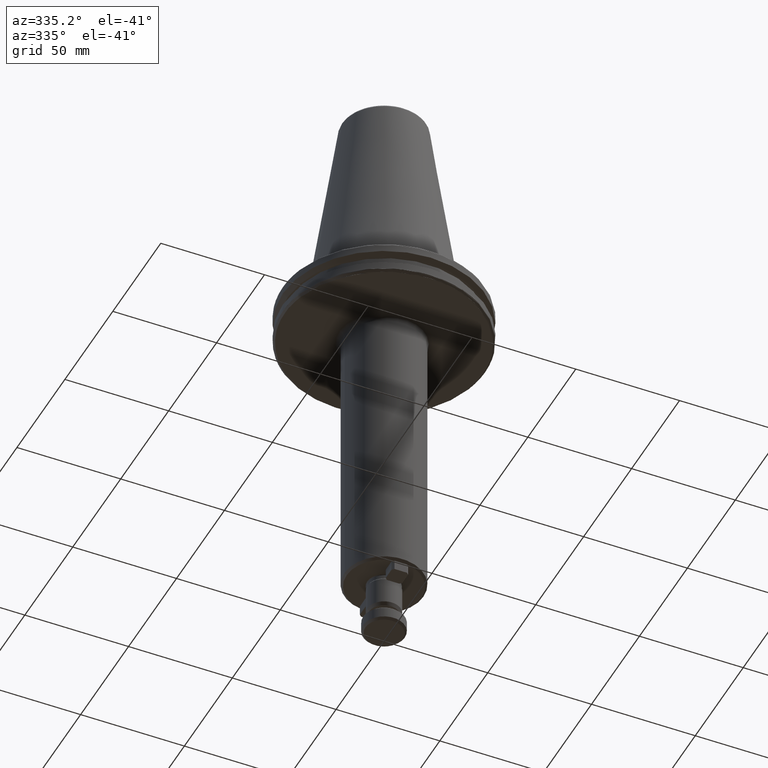
[diagram: clean part render]
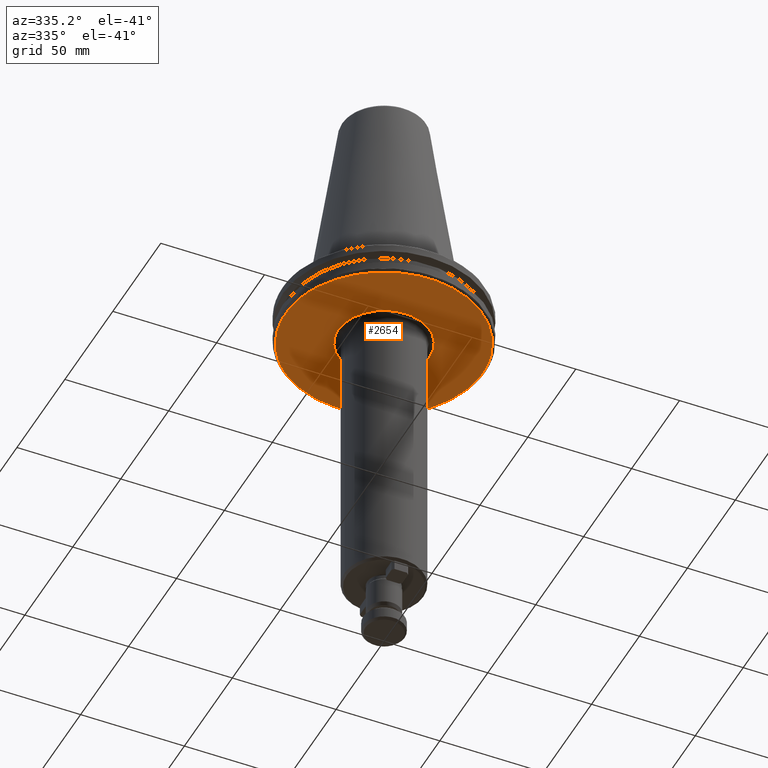
[diagram: same view with one face highlighted and labeled with its STEP entity id]
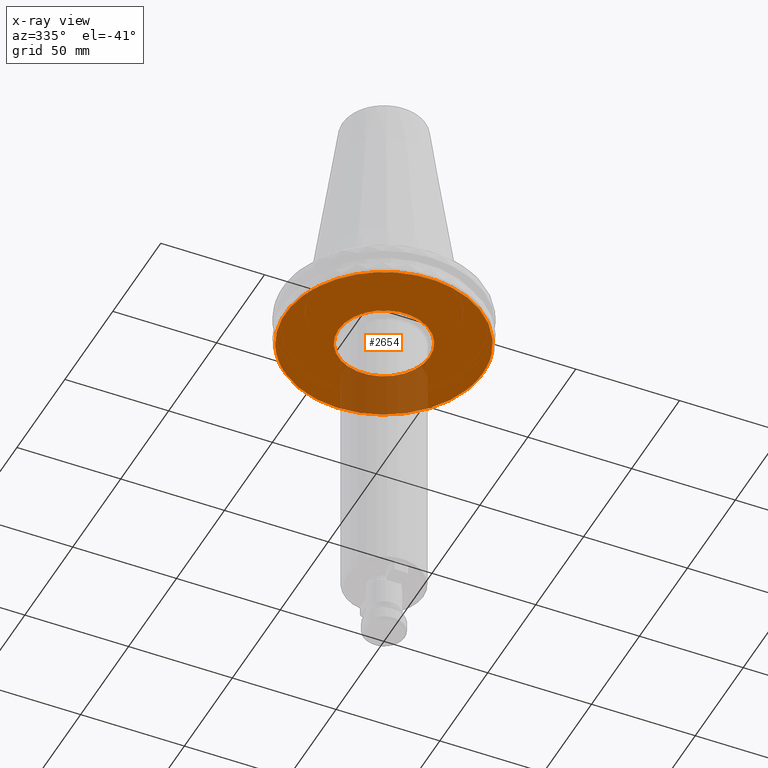
[diagram: x-ray of the same camera — body ghosted, the highlighted face saturated]
A machine part, auxiliary view. The second image highlights one B-rep face of the part: STEP entity #2654.
The next image is the same camera in x-ray: the body ghosted, the highlighted face saturated — about 18% of this face is hidden behind the body in this view.
In plain terms, the highlighted planar face has unit normal (0, 0, -1).
Its self-contained STEP definition (entity closure, byte-faithful):
#52 = AXIS2_PLACEMENT_3D ( 'NONE', #3479, #1647, #3786 ) ;
#57 = B_SPLINE_CURVE_WITH_KNOTS ( 'NONE', 3,
 ( #3396, #1267, #1562, #3700, #1858, #67, #2148, #384, #2466, #671, #2776, #965, #3091, #1275, #3408, #1574, #3710, #1868, #80, #2159, #390, #2481, #678, #2789, #975, #3108, #1290, #3420, #1585, #3727, #1878, #91, #2173, #404, #2489, #695, #2800, #988, #3121, #1305, #3434, #1599, #3742, #1890, #105, #2184, #419, #2505, #709, #2816, #1002, #3134, #1315, #3452, #1615, #3755, #1906, #118, #2198, #433, #2521, #722, #2828, #1020, #3148, #1327, #3462, #1633, #3768, #1919, #132, #2213, #446, #2533, #738, #2842, #1033, #3164, #1342, #3478, #1646, #3785, #1932, #149, #2231, #463, #2546, #750, #2857, #1048, #3178, #1357, #3494, #1661, #3795, #1946, #164, #2243, #474, #2561, #762, #2866, #1065, #3192, #1367, #3509, #1675, #3810, #1957, #179 ),
 .UNSPECIFIED., .F., .F.,
 ( 4, 1, 1, 1, 1, 1, 2, 2, 1, 1, 1, 1, 2, 2, 1, 1, 1, 1, 2, 2, 2, 1, 1, 1, 1, 2, 2, 1, 1, 1, 1, 2, 2, 1, 1, 1, 1, 1, 2, 2, 2, 1, 1, 1, 1, 1, 2, 2, 1, 1, 1, 1, 2, 2, 1, 1, 1, 1, 2, 2, 2, 1, 1, 1, 1, 2, 2, 1, 1, 1, 1, 2, 2, 1, 1, 1, 1, 1, 2, 2, 4 ),
 ( 0.0000000000000000000, 0.03124999999999778000, 0.04687499999999657900, 0.05468749999999601700, 0.05859374999999566300, 0.06054687499999552400, 0.06152343749999545500, 0.06249999999999538600, 0.09374999999999456000, 0.1093749999999941200, 0.1171874999999938500, 0.1210937499999938100, 0.1230468749999937500, 0.1249999999999937000, 0.1562499999999939800, 0.1718749999999941700, 0.1796874999999942000, 0.1835937499999941700, 0.1855468749999942000, 0.1874999999999942300, 0.2499999999999952800, 0.2812499999999958400, 0.2968749999999960600, 0.3046874999999961700, 0.3085937499999962800, 0.3105468749999962300, 0.3124999999999962300, 0.3437499999999963900, 0.3593749999999965000, 0.3671874999999965600, 0.3710937499999966100, 0.3730468749999966100, 0.3749999999999966700, 0.4062499999999971700, 0.4218749999999974500, 0.4296874999999975600, 0.4335937499999976100, 0.4355468749999976100, 0.4365234374999976700, 0.4374999999999977200, 0.4999999999999995600, 0.5312500000000004400, 0.5468750000000008900, 0.5546875000000011100, 0.5585937500000011100, 0.5605468750000012200, 0.5615234375000013300, 0.5625000000000013300, 0.5937500000000006700, 0.6093750000000003300, 0.6171875000000002200, 0.6210937500000001100, 0.6230468750000001100, 0.6250000000000001100, 0.6562499999999993300, 0.6718749999999988900, 0.6796874999999987800, 0.6835937499999985600, 0.6855468749999985600, 0.6874999999999985600, 0.7499999999999981100, 0.7812499999999978900, 0.7968749999999977800, 0.8046874999999976700, 0.8085937499999975600, 0.8105468749999974500, 0.8124999999999973400, 0.8437499999999964500, 0.8593749999999958900, 0.8671874999999955600, 0.8710937499999953400, 0.8730468749999953400, 0.8749999999999953400, 0.9062499999999948900, 0.9218749999999946700, 0.9296874999999945600, 0.9335937499999945600, 0.9355468749999945600, 0.9365234374999946700, 0.9374999999999946700, 1.000000000000000000 ),
 .UNSPECIFIED. ) ;
#67 = CARTESIAN_POINT ( 'NONE',  ( 43.51090192562529100, -19.26422878765349000, -19.10000000000000500 ) ) ;
#80 = CARTESIAN_POINT ( 'NONE',  ( 38.83538641208784300, -27.52832894059743300, -19.10000000000000500 ) ) ;
#89 = CIRCLE ( 'NONE', #764, 22.00000000000000000 ) ;
#91 = CARTESIAN_POINT ( 'NONE',  ( 23.04197630937905200, -41.63572875460497600, -19.10000000000000900 ) ) ;
#105 = CARTESIAN_POINT ( 'NONE',  ( 13.55299495753909000, -45.63134899766063100, -19.10000000000000900 ) ) ;
#107 = B_SPLINE_CURVE_WITH_KNOTS ( 'NONE', 3,
 ( #3244, #1119, #822, #2933, #1130, #3261 ),
 .UNSPECIFIED., .F., .F.,
 ( 4, 2, 4 ),
 ( 0.0000000000000000000, 0.5000000000000000000, 1.000000000000000000 ),
 .UNSPECIFIED. ) ;
#110 = ORIENTED_EDGE ( 'NONE', *, *, #3655, .T. ) ;
#118 = CARTESIAN_POINT ( 'NONE',  ( -5.201506961608904700, -47.30626884292214400, -19.10000000000000500 ) ) ;
#132 = CARTESIAN_POINT ( 'NONE',  ( -14.61660763804840700, -45.28386166225934100, -19.10000000000000900 ) ) ;
#140 = CARTESIAN_POINT ( 'NONE',  ( -25.54871977331017500, 40.14390888365007000, -19.10000000000000500 ) ) ;
#149 = CARTESIAN_POINT ( 'NONE',  ( -31.34702148197053600, -35.84352815055592600, -19.10000000000000500 ) ) ;
#154 = CARTESIAN_POINT ( 'NONE',  ( -15.61238905962479400, 44.95090609541712500, -19.10000000000000500 ) ) ;
#159 = CARTESIAN_POINT ( 'NONE',  ( 0.0000000000000000000, 0.0000000000000000000, -19.09999999474892700 ) ) ;
#164 = CARTESIAN_POINT ( 'NONE',  ( -39.47414305756478800, -26.57189768201729400, -19.10000000000000900 ) ) ;
#172 = CARTESIAN_POINT ( 'NONE',  ( 1.308120951141947600, 47.57091866719089500, -19.10000000000000900 ) ) ;
#179 = CARTESIAN_POINT ( 'NONE',  ( -45.81650991385436100, -12.85002475276211300, -19.09999999474892700 ) ) ;
#183 = CARTESIAN_POINT ( 'NONE',  ( 10.73456591713719300, 46.39711397970397400, -19.10000000000000500 ) ) ;
#196 = CARTESIAN_POINT ( 'NONE',  ( 24.18776650256299000, 40.97956592006652000, -19.10000000000000500 ) ) ;
#208 = CARTESIAN_POINT ( 'NONE',  ( 35.92102204145000900, 31.23633589274896800, -19.10000000000000500 ) ) ;
#225 = CARTESIAN_POINT ( 'NONE',  ( 42.53277874157888800, 21.37544343126220500, -19.10000000000000900 ) ) ;
#239 = B_SPLINE_CURVE_WITH_KNOTS ( 'NONE', 3,
 ( #2836, #729, #3471, #1637, #3776, #1924, #140, #2221, #454, #2539, #743, #2848, #1041, #3169, #1350, #3483, #1654, #3789, #1937, #154, #2235, #467, #2552, #754, #2862, #1054, #3185, #1358, #3502, #1666, #3803, #1949, #172, #2246, #479, #2566, #767, #2871, #1069, #3197, #1372, #3512, #1680, #3815, #1962, #183, #2261, #490, #2579, #779, #2886, #1081, #3212, #1387, #3528, #1693, #3833, #1976, #196, #2276, #507, #2594, #792, #2902, #1097, #3225, #1402, #3540, #1708, #3848, #1990, #208, #2290, #521, #2611, #805, #2920, #1113, #3239, #1413, #3561, #1718, #3863, #2004, #225, #2302, #534, #2632, #819, #2929, #1127, #3256, #1426, #3569 ),
 .UNSPECIFIED., .F., .F.,
 ( 4, 1, 1, 1, 1, 2, 2, 1, 1, 1, 2, 2, 1, 1, 2, 2, 2, 1, 1, 2, 2, 1, 1, 1, 2, 2, 1, 1, 1, 1, 2, 2, 2, 1, 1, 1, 1, 2, 2, 1, 1, 1, 2, 2, 1, 1, 2, 2, 2, 1, 1, 2, 2, 1, 1, 1, 2, 2, 1, 1, 1, 1, 2, 2, 4 ),
 ( 0.0000000000000000000, 0.03124999999999664900, 0.04687499999999486500, 0.05468749999999397000, 0.05859374999999363000, 0.06054687499999357500, 0.06249999999999351900, 0.09374999999999429600, 0.1093749999999947100, 0.1171874999999949100, 0.1210937499999949100, 0.1249999999999949200, 0.1562499999999948100, 0.1718749999999947500, 0.1796874999999947300, 0.1874999999999946700, 0.2499999999999945600, 0.2812499999999945000, 0.2968749999999944500, 0.3046874999999944500, 0.3124999999999944500, 0.3437499999999945000, 0.3593749999999945600, 0.3671874999999945600, 0.3710937499999945600, 0.3749999999999945600, 0.4062499999999947300, 0.4218749999999947800, 0.4296874999999947800, 0.4335937499999947300, 0.4355468749999947800, 0.4374999999999947800, 0.4999999999999950000, 0.5312499999999952300, 0.5468749999999952300, 0.5546874999999952300, 0.5585937499999952300, 0.5605468749999953400, 0.5624999999999953400, 0.5937499999999945600, 0.6093749999999941200, 0.6171874999999938900, 0.6210937499999937800, 0.6249999999999936700, 0.6562499999999931200, 0.6718749999999927800, 0.6796874999999926700, 0.6874999999999926700, 0.7499999999999925600, 0.7812499999999927800, 0.7968749999999927800, 0.8046874999999927800, 0.8124999999999926700, 0.8437499999999924500, 0.8593749999999923400, 0.8671874999999922300, 0.8710937499999923400, 0.8749999999999923400, 0.9062499999999934500, 0.9218749999999938900, 0.9296874999999942300, 0.9335937499999944500, 0.9355468749999945600, 0.9374999999999946700, 1.000000000000000000 ),
 .UNSPECIFIED. ) ;
#298 = CARTESIAN_POINT ( 'NONE',  ( -30.00005778855020500, 36.93605622581492300, -19.09999999474892700 ) ) ;
#384 = CARTESIAN_POINT ( 'NONE',  ( 43.35367392674997000, -19.61446926785484000, -19.10000000000000500 ) ) ;
#390 = CARTESIAN_POINT ( 'NONE',  ( 36.21214877210109500, -30.88232116247052500, -19.10000000000000900 ) ) ;
#400 = VERTEX_POINT ( 'NONE', #1362 ) ;
#404 = CARTESIAN_POINT ( 'NONE',  ( 22.30913507860049800, -42.03066486931250300, -19.10000000000000100 ) ) ;
#419 = CARTESIAN_POINT ( 'NONE',  ( 9.531275137177059900, -46.62778514758635100, -19.10000000000000500 ) ) ;
#433 = CARTESIAN_POINT ( 'NONE',  ( -6.798485331641742800, -47.09660001122696800, -19.10000000000000900 ) ) ;
#444 = AXIS2_PLACEMENT_3D ( 'NONE', #1777, #3921, #2062 ) ;
#446 = CARTESIAN_POINT ( 'NONE',  ( -16.01819460261143000, -44.82648295049219200, -19.10000000000000900 ) ) ;
#454 = CARTESIAN_POINT ( 'NONE',  ( -25.39850626193174300, 40.23911708929993100, -19.10000000000000100 ) ) ;
#463 = CARTESIAN_POINT ( 'NONE',  ( -33.86642685690727500, -33.42950363247387500, -19.10000000000000500 ) ) ;
#467 = CARTESIAN_POINT ( 'NONE',  ( -14.90863721726842800, 45.18917973414403400, -19.10000000000000500 ) ) ;
#472 = DIRECTION ( 'NONE',  ( 1.000000000000000000, 0.0000000000000000000, 0.0000000000000000000 ) ) ;
#474 = CARTESIAN_POINT ( 'NONE',  ( -40.27606908762341900, -25.37207012674300100, -19.10000000000000900 ) ) ;
#479 = CARTESIAN_POINT ( 'NONE',  ( 2.547980808395235600, 47.51621399213986100, -19.10000000000000100 ) ) ;
#490 = CARTESIAN_POINT ( 'NONE',  ( 15.31832594408059100, 45.06140698263472900, -19.10000000000001200 ) ) ;
#507 = CARTESIAN_POINT ( 'NONE',  ( 24.71160396700230100, 40.66470845362184100, -19.10000000000000100 ) ) ;
#521 = CARTESIAN_POINT ( 'NONE',  ( 37.49764701077705800, 29.29604387573100900, -19.10000000000000500 ) ) ;
#534 = CARTESIAN_POINT ( 'NONE',  ( 43.60702238820626100, 19.04732045925824500, -19.10000000000000500 ) ) ;
#599 = CIRCLE ( 'NONE', #3571, 47.58440623600250100 ) ;
#602 = CARTESIAN_POINT ( 'NONE',  ( -36.93605622581492300, 30.00005778855020800, -19.09999999474892700 ) ) ;
#671 = CARTESIAN_POINT ( 'NONE',  ( 43.30670207663172300, -19.71796403964764000, -19.10000000000000100 ) ) ;
#678 = CARTESIAN_POINT ( 'NONE',  ( 35.06522988161573600, -32.16745368915921000, -19.10000000000000500 ) ) ;
#683 = VERTEX_POINT ( 'NONE', #298 ) ;
#695 = CARTESIAN_POINT ( 'NONE',  ( 22.08702858398671200, -42.14779738270512200, -19.10000000000000500 ) ) ;
#706 = AXIS2_PLACEMENT_3D ( 'NONE', #2885, #1080, #3211 ) ;
#709 = CARTESIAN_POINT ( 'NONE',  ( 7.882317655028997700, -46.92741024692442400, -19.10000000000000100 ) ) ;
#722 = CARTESIAN_POINT ( 'NONE',  ( -7.178197001860739100, -47.03979101429536800, -19.10000000000000900 ) ) ;
#729 = CARTESIAN_POINT ( 'NONE',  ( -29.25803840789287200, 37.53861819214704800, -19.09999999999999800 ) ) ;
#731 = EDGE_LOOP ( 'NONE', ( #2628, #2154 ) ) ;
#738 = CARTESIAN_POINT ( 'NONE',  ( -19.95597383139069700, -43.20644150488462300, -19.10000000000000900 ) ) ;
#743 = CARTESIAN_POINT ( 'NONE',  ( -23.25549417440079800, 41.53467180138673600, -19.10000000000000500 ) ) ;
#750 = CARTESIAN_POINT ( 'NONE',  ( -34.44459152367806400, -32.83054084352279000, -19.10000000000000100 ) ) ;
#754 = CARTESIAN_POINT ( 'NONE',  ( -10.82718688243038800, 46.37940535234366000, -19.10000000000000500 ) ) ;
#762 = CARTESIAN_POINT ( 'NONE',  ( -42.32153804858890600, -21.76885322459245500, -19.10000000000000900 ) ) ;
#764 = AXIS2_PLACEMENT_3D ( 'NONE', #2783, #968, #3098 ) ;
#767 = CARTESIAN_POINT ( 'NONE',  ( 2.921919774953071900, 47.49467552483471900, -19.09999999999999800 ) ) ;
#779 = CARTESIAN_POINT ( 'NONE',  ( 18.21854896511472800, 43.96310894627836800, -19.10000000000000900 ) ) ;
#792 = CARTESIAN_POINT ( 'NONE',  ( 25.76667434766581300, 40.01666842955532400, -19.10000000000000500 ) ) ;
#805 = CARTESIAN_POINT ( 'NONE',  ( 37.95643437415584000, 28.69908590947580500, -19.10000000000000500 ) ) ;
#819 = CARTESIAN_POINT ( 'NONE',  ( 43.84707740126011500, 18.48525077571082100, -19.10000000000000500 ) ) ;
#822 = CARTESIAN_POINT ( 'NONE',  ( -43.75094089817592600, 18.99202807369529800, -19.10000000000000500 ) ) ;
#965 = CARTESIAN_POINT ( 'NONE',  ( 41.89551112235373200, -22.62542822165210400, -19.10000000000000500 ) ) ;
#968 = DIRECTION ( 'NONE',  ( -0.0000000000000000000, -0.0000000000000000000, 1.000000000000000000 ) ) ;
#975 = CARTESIAN_POINT ( 'NONE',  ( 34.78600378371227500, -32.46856408570332800, -19.10000000000000100 ) ) ;
#988 = CARTESIAN_POINT ( 'NONE',  ( 19.06919911911503700, -43.63110076014636000, -19.10000000000000500 ) ) ;
#1002 = CARTESIAN_POINT ( 'NONE',  ( 7.487954410176240700, -46.99147931232112500, -19.10000000000000500 ) ) ;
#1020 = CARTESIAN_POINT ( 'NONE',  ( -7.290541769874658400, -47.02251111249497500, -19.10000000000000500 ) ) ;
#1033 = CARTESIAN_POINT ( 'NONE',  ( -21.50308199364791400, -42.44918006592077100, -19.10000000000000500 ) ) ;
#1041 = CARTESIAN_POINT ( 'NONE',  ( -20.97772230054858200, 42.71191916152597700, -19.10000000000000100 ) ) ;
#1047 = VERTEX_POINT ( 'NONE', #2494 ) ;
#1048 = CARTESIAN_POINT ( 'NONE',  ( -34.61735141641527500, -32.64831751860600700, -19.10000000000000900 ) ) ;
#1054 = CARTESIAN_POINT ( 'NONE',  ( -6.393095184566051100, 47.17156811542699300, -19.10000000000000900 ) ) ;
#1065 = CARTESIAN_POINT ( 'NONE',  ( -43.05532719420840200, -20.26207206329506100, -19.10000000000000500 ) ) ;
#1069 = CARTESIAN_POINT ( 'NONE',  ( 5.478699833393303500, 47.28562886859818800, -19.10000000000000100 ) ) ;
#1080 = DIRECTION ( 'NONE',  ( -0.0000000000000000000, -0.0000000000000000000, 1.000000000000000000 ) ) ;
#1081 = CARTESIAN_POINT ( 'NONE',  ( 19.36869561264892800, 43.46430390230612800, -19.10000000000000100 ) ) ;
#1097 = CARTESIAN_POINT ( 'NONE',  ( 28.41294149275874800, 38.17601633497948700, -19.09999999999999800 ) ) ;
#1108 = FACE_BOUND ( 'NONE', #731, .T. ) ;
#1113 = CARTESIAN_POINT ( 'NONE',  ( 39.55409234850913700, 26.48536274293576300, -19.10000000000000100 ) ) ;
#1119 = CARTESIAN_POINT ( 'NONE',  ( -44.93810529642089300, 15.98161967225063900, -19.10000000000000100 ) ) ;
#1127 = CARTESIAN_POINT ( 'NONE',  ( 43.91854959793744200, 18.31478907998181800, -19.10000000000000100 ) ) ;
#1130 = CARTESIAN_POINT ( 'NONE',  ( -38.98676025536540400, 27.47508662003281500, -19.10000000000000500 ) ) ;
#1221 = DIRECTION ( 'NONE',  ( 0.0000000000000000000, 0.0000000000000000000, -1.000000000000000000 ) ) ;
#1267 = CARTESIAN_POINT ( 'NONE',  ( 45.48455499196277400, -14.03326405621701100, -19.10000000000000100 ) ) ;
#1275 = CARTESIAN_POINT ( 'NONE',  ( 40.17757738671358000, -25.49926469668890400, -19.10000000000000500 ) ) ;
#1283 = ORIENTED_EDGE ( 'NONE', *, *, #3067, .T. ) ;
#1290 = CARTESIAN_POINT ( 'NONE',  ( 32.84777691328537200, -34.53116215255219100, -19.10000000000000100 ) ) ;
#1291 = EDGE_CURVE ( 'NONE', #1814, #2254, #3030, .T. ) ;
#1305 = CARTESIAN_POINT ( 'NONE',  ( 15.85766042695990500, -44.86641853677324600, -19.10000000000000500 ) ) ;
#1315 = CARTESIAN_POINT ( 'NONE',  ( 7.367970511328269200, -47.01043969523494300, -19.10000000000000100 ) ) ;
#1327 = CARTESIAN_POINT ( 'NONE',  ( -10.47107321257776200, -46.44890181901310200, -19.10000000000000500 ) ) ;
#1342 = CARTESIAN_POINT ( 'NONE',  ( -21.86840944257203400, -42.26164196384021900, -19.10000000000000900 ) ) ;
#1350 = CARTESIAN_POINT ( 'NONE',  ( -20.42700269620342000, 42.97696412136785700, -19.09999999999999800 ) ) ;
#1357 = CARTESIAN_POINT ( 'NONE',  ( -36.86050155003098900, -30.14317060409082700, -19.10000000000000500 ) ) ;
#1358 = CARTESIAN_POINT ( 'NONE',  ( -3.905819226031873400, 47.42442718986811200, -19.10000000000000500 ) ) ;
#1362 = CARTESIAN_POINT ( 'NONE',  ( 45.81650991385429000, -12.85002475276233900, -19.09999999474892700 ) ) ;
#1367 = CARTESIAN_POINT ( 'NONE',  ( -43.22351251080892400, -19.89966219405080500, -19.10000000000000100 ) ) ;
#1372 = CARTESIAN_POINT ( 'NONE',  ( 8.014402807646559900, 46.90567306712805600, -19.10000000000000500 ) ) ;
#1387 = CARTESIAN_POINT ( 'NONE',  ( 19.64105775858945100, 43.34165811582305100, -19.10000000000000900 ) ) ;
#1400 = ORIENTED_EDGE ( 'NONE', *, *, #2517, .F. ) ;
#1402 = CARTESIAN_POINT ( 'NONE',  ( 29.39637043276513900, 37.41901030422590700, -19.10000000000000900 ) ) ;
#1409 = CARTESIAN_POINT ( 'NONE',  ( 0.0000000000000000000, 0.0000000000000000000, -19.09999999474892700 ) ) ;
#1413 = CARTESIAN_POINT ( 'NONE',  ( 40.92895922265621100, 24.27337234609990800, -19.10000000000000500 ) ) ;
#1426 = CARTESIAN_POINT ( 'NONE',  ( 45.30006797984477600, 14.69104886070644700, -19.10000000000000500 ) ) ;
#1457 = CARTESIAN_POINT ( 'NONE',  ( -45.81650991385429000, 12.85002475276233900, -19.09999999474892700 ) ) ;
#1562 = CARTESIAN_POINT ( 'NONE',  ( 44.91986629715702900, -15.78375219148239400, -19.10000000000000500 ) ) ;
#1565 = AXIS2_PLACEMENT_3D ( 'NONE', #1409, #3555, #1716 ) ;
#1569 = EDGE_CURVE ( 'NONE', #683, #2320, #2438, .T. ) ;
#1574 = CARTESIAN_POINT ( 'NONE',  ( 39.74239188769973900, -26.16898826911619100, -19.10000000000001200 ) ) ;
#1585 = CARTESIAN_POINT ( 'NONE',  ( 27.68499332084197200, -38.72449491407408600, -19.10000000000000900 ) ) ;
#1599 = CARTESIAN_POINT ( 'NONE',  ( 15.08070599188592800, -45.13143456946085100, -19.10000000000000900 ) ) ;
#1615 = CARTESIAN_POINT ( 'NONE',  ( 2.457672413238246400, -47.58428782218787500, -19.10000000000000900 ) ) ;
#1633 = CARTESIAN_POINT ( 'NONE',  ( -13.70206127222429000, -45.57086505245657500, -19.10000000000000100 ) ) ;
#1637 = CARTESIAN_POINT ( 'NONE',  ( -26.74803097108493000, 39.36004225602716400, -19.10000000000000500 ) ) ;
#1646 = CARTESIAN_POINT ( 'NONE',  ( -24.37778840664681800, -40.95242410592162200, -19.10000000000000500 ) ) ;
#1647 = DIRECTION ( 'NONE',  ( -0.0000000000000000000, -0.0000000000000000000, 1.000000000000000000 ) ) ;
#1654 = CARTESIAN_POINT ( 'NONE',  ( -19.30618639452273300, 43.50317719476752400, -19.10000000000000100 ) ) ;
#1661 = CARTESIAN_POINT ( 'NONE',  ( -38.91719004522487800, -27.38454355136135400, -19.10000000000000900 ) ) ;
#1666 = CARTESIAN_POINT ( 'NONE',  ( -3.155000903945456500, 47.48025286090142300, -19.10000000000000900 ) ) ;
#1675 = CARTESIAN_POINT ( 'NONE',  ( -43.27416862306105800, -19.78925870223156000, -19.10000000000000900 ) ) ;
#1680 = CARTESIAN_POINT ( 'NONE',  ( 8.615996470641381000, 46.79781295841750900, -19.10000000000000500 ) ) ;
#1693 = CARTESIAN_POINT ( 'NONE',  ( 20.63973171907657900, 42.88620113813023900, -19.10000000000000900 ) ) ;
#1708 = CARTESIAN_POINT ( 'NONE',  ( 31.34720755508379900, 35.85573751084054800, -19.10000000000000500 ) ) ;
#1716 = DIRECTION ( 'NONE',  ( 1.000000000000000000, 0.0000000000000000000, 0.0000000000000000000 ) ) ;
#1718 = CARTESIAN_POINT ( 'NONE',  ( 41.24130619434603800, 23.73682857431735700, -19.10000000000000900 ) ) ;
#1777 = CARTESIAN_POINT ( 'NONE',  ( 0.0000000000000000000, 0.0000000000000000000, -19.09999999474892700 ) ) ;
#1780 = VERTEX_POINT ( 'NONE', #3040 ) ;
#1814 = VERTEX_POINT ( 'NONE', #3056 ) ;
#1828 = ORIENTED_EDGE ( 'NONE', *, *, #2126, .F. ) ;
#1852 = EDGE_LOOP ( 'NONE', ( #2306, #110, #1933, #2567, #1400, #1828, #1283 ) ) ;
#1858 = CARTESIAN_POINT ( 'NONE',  ( 43.72681445220428700, -18.77235708420023000, -19.10000000000000900 ) ) ;
#1868 = CARTESIAN_POINT ( 'NONE',  ( 39.61125381757043600, -26.36706712308016200, -19.10000000000000100 ) ) ;
#1878 = CARTESIAN_POINT ( 'NONE',  ( 24.05664872149412000, -41.06504018283744300, -19.10000000000000500 ) ) ;
#1890 = CARTESIAN_POINT ( 'NONE',  ( 14.84463130699052900, -45.20962530651281200, -19.10000000000000900 ) ) ;
#1906 = CARTESIAN_POINT ( 'NONE',  ( -3.066716835733801300, -47.51334310158583900, -19.10000000000000900 ) ) ;
#1919 = CARTESIAN_POINT ( 'NONE',  ( -14.46442323065742200, -45.33270475704076600, -19.10000000000000500 ) ) ;
#1924 = CARTESIAN_POINT ( 'NONE',  ( -25.69983870482903400, 40.04760097354591900, -19.10000000000000900 ) ) ;
#1932 = CARTESIAN_POINT ( 'NONE',  ( -29.80952097295647000, -37.11384944854526700, -19.10000000000000500 ) ) ;
#1933 = ORIENTED_EDGE ( 'NONE', *, *, #1569, .F. ) ;
#1937 = CARTESIAN_POINT ( 'NONE',  ( -16.31507297257428800, 44.70483040319042100, -19.10000000000000100 ) ) ;
#1940 = EDGE_CURVE ( 'NONE', #3209, #1047, #3222, .T. ) ;
#1946 = CARTESIAN_POINT ( 'NONE',  ( -39.38217416850997700, -26.70802196479451900, -19.10000000000000500 ) ) ;
#1949 = CARTESIAN_POINT ( 'NONE',  ( -0.4276219226842210000, 47.60060714561257100, -19.10000000000000500 ) ) ;
#1957 = CARTESIAN_POINT ( 'NONE',  ( -45.15259770386980900, -15.21685122227706400, -19.10000000000000100 ) ) ;
#1962 = CARTESIAN_POINT ( 'NONE',  ( 8.797719920410600000, 46.76398851016824700, -19.10000000000000500 ) ) ;
#1976 = CARTESIAN_POINT ( 'NONE',  ( 23.44915669443227200, 41.41046852583234300, -19.10000000000000500 ) ) ;
#1990 = CARTESIAN_POINT ( 'NONE',  ( 34.91299446006971900, 32.34739424200956400, -19.10000000000000500 ) ) ;
#2004 = CARTESIAN_POINT ( 'NONE',  ( 41.84803922460157100, 22.67082524195410900, -19.10000000000000100 ) ) ;
#2062 = DIRECTION ( 'NONE',  ( 1.000000000000000000, 0.0000000000000000000, 0.0000000000000000000 ) ) ;
#2126 = EDGE_CURVE ( 'NONE', #400, #1780, #3443, .T. ) ;
#2148 = CARTESIAN_POINT ( 'NONE',  ( 43.40111667457645700, -19.50949723452300700, -19.10000000000000900 ) ) ;
#2154 = ORIENTED_EDGE ( 'NONE', *, *, #3715, .T. ) ;
#2159 = CARTESIAN_POINT ( 'NONE',  ( 37.67621538465287800, -29.11717796348957100, -19.10000000000000500 ) ) ;
#2173 = CARTESIAN_POINT ( 'NONE',  ( 22.52972475072374100, -41.91334347041178200, -19.10000000000000100 ) ) ;
#2184 = CARTESIAN_POINT ( 'NONE',  ( 11.71142353891909200, -46.15177667591264300, -19.10000000000000500 ) ) ;
#2198 = CARTESIAN_POINT ( 'NONE',  ( -6.266551039190168200, -47.17166706347747900, -19.10000000000000100 ) ) ;
#2213 = CARTESIAN_POINT ( 'NONE',  ( -14.69055632917383000, -45.25992943446074400, -19.10000000000000100 ) ) ;
#2221 = CARTESIAN_POINT ( 'NONE',  ( -25.44784265904079100, 40.20793179859312300, -19.09999999999999400 ) ) ;
#2231 = CARTESIAN_POINT ( 'NONE',  ( -33.04293178105576300, -34.25236535246320100, -19.10000000000000500 ) ) ;
#2235 = CARTESIAN_POINT ( 'NONE',  ( -15.14249711230291600, 45.11134788466759500, -19.09999999999999800 ) ) ;
#2239 = DIRECTION ( 'NONE',  ( -0.0000000000000000000, -0.0000000000000000000, 1.000000000000000000 ) ) ;
#2243 = CARTESIAN_POINT ( 'NONE',  ( -39.52121115035011900, -26.50183329894598200, -19.10000000000000900 ) ) ;
#2246 = CARTESIAN_POINT ( 'NONE',  ( 2.176018877763047600, 47.53568396421928100, -19.10000000000000900 ) ) ;
#2254 = VERTEX_POINT ( 'NONE', #3911 ) ;
#2261 = CARTESIAN_POINT ( 'NONE',  ( 12.58557862074794000, 45.92953526851350400, -19.10000000000000500 ) ) ;
#2276 = CARTESIAN_POINT ( 'NONE',  ( 24.50233304969292900, 40.79115049132191500, -19.10000000000000500 ) ) ;
#2290 = CARTESIAN_POINT ( 'NONE',  ( 37.03410230690259700, 29.88621448141576700, -19.10000000000000500 ) ) ;
#2302 = CARTESIAN_POINT ( 'NONE',  ( 43.26075550676694800, 19.82919047881128400, -19.10000000000000500 ) ) ;
#2306 = ORIENTED_EDGE ( 'NONE', *, *, #1940, .F. ) ;
#2311 = CARTESIAN_POINT ( 'NONE',  ( 0.0000000000000000000, 1.392610934382537900E-015, -19.10000000000000500 ) ) ;
#2320 = VERTEX_POINT ( 'NONE', #602 ) ;
#2438 = CIRCLE ( 'NONE', #444, 47.58440623600250100 ) ;
#2466 = CARTESIAN_POINT ( 'NONE',  ( 43.32195833354379000, -19.68441884222572800, -19.10000000000000500 ) ) ;
#2481 = CARTESIAN_POINT ( 'NONE',  ( 35.45219036235576500, -31.74276426336270500, -19.10000000000000500 ) ) ;
#2489 = CARTESIAN_POINT ( 'NONE',  ( 22.16184123277559700, -42.10851106048077200, -19.10000000000000900 ) ) ;
#2494 = CARTESIAN_POINT ( 'NONE',  ( -45.81650991385436100, -12.85002475276211300, -19.09999999474892700 ) ) ;
#2505 = CARTESIAN_POINT ( 'NONE',  ( 8.433288832968020900, -46.83300009518481500, -19.10000000000000500 ) ) ;
#2517 = EDGE_CURVE ( 'NONE', #1780, #3104, #599, .T. ) ;
#2521 = CARTESIAN_POINT ( 'NONE',  ( -7.064305541282759100, -47.05712494446966300, -19.10000000000000900 ) ) ;
#2533 = CARTESIAN_POINT ( 'NONE',  ( -17.86104397993744900, -44.13944229614413200, -19.10000000000000500 ) ) ;
#2539 = CARTESIAN_POINT ( 'NONE',  ( -24.51896949215701900, 40.79270656059319600, -19.10000000000000100 ) ) ;
#2546 = CARTESIAN_POINT ( 'NONE',  ( -34.27205937641023300, -33.01125269224346700, -19.10000000000000100 ) ) ;
#2552 = CARTESIAN_POINT ( 'NONE',  ( -12.76496267438223200, 45.88395211695184600, -19.09999999999999800 ) ) ;
#2561 = CARTESIAN_POINT ( 'NONE',  ( -41.27447217701355000, -23.73945825336500100, -19.10000000000000500 ) ) ;
#2566 = CARTESIAN_POINT ( 'NONE',  ( 2.795956690231360800, 47.50226303628877400, -19.10000000000000100 ) ) ;
#2567 = ORIENTED_EDGE ( 'NONE', *, *, #2822, .T. ) ;
#2579 = CARTESIAN_POINT ( 'NONE',  ( 16.66931579828063500, 44.58704690948568600, -19.10000000000000500 ) ) ;
#2594 = CARTESIAN_POINT ( 'NONE',  ( 24.81440725883085800, 40.60206258293646200, -19.10000000000000500 ) ) ;
#2611 = CARTESIAN_POINT ( 'NONE',  ( 37.80367910322554800, 28.90003077334454300, -19.10000000000000900 ) ) ;
#2628 = ORIENTED_EDGE ( 'NONE', *, *, #1291, .T. ) ;
#2632 = CARTESIAN_POINT ( 'NONE',  ( 43.77572545363726400, 18.65419956364984300, -19.10000000000000100 ) ) ;
#2654 = ADVANCED_FACE ( 'NONE', ( #2714, #1108 ), #3036, .T. ) ;
#2714 = FACE_OUTER_BOUND ( 'NONE', #1852, .T. ) ;
#2776 = CARTESIAN_POINT ( 'NONE',  ( 42.75923279349206800, -20.91773531037192800, -19.10000000000000500 ) ) ;
#2783 = CARTESIAN_POINT ( 'NONE',  ( 0.0000000000000000000, 0.0000000000000000000, -19.10000000000000500 ) ) ;
#2789 = CARTESIAN_POINT ( 'NONE',  ( 34.89789368789844600, -32.34827798778996300, -19.10000000000000100 ) ) ;
#2800 = CARTESIAN_POINT ( 'NONE',  ( 20.84887959193406800, -42.79392924822951000, -19.10000000000000900 ) ) ;
#2816 = CARTESIAN_POINT ( 'NONE',  ( 7.606337559600864200, -46.97256599227938500, -19.10000000000000500 ) ) ;
#2822 = EDGE_CURVE ( 'NONE', #683, #3104, #239, .T. ) ;
#2828 = CARTESIAN_POINT ( 'NONE',  ( -7.254117645265835400, -47.02814260653002500, -19.10000000000000900 ) ) ;
#2836 = CARTESIAN_POINT ( 'NONE',  ( -30.00005778855020500, 36.93605622581492300, -19.09999999474892700 ) ) ;
#2842 = CARTESIAN_POINT ( 'NONE',  ( -20.98967348492718400, -42.70707776895816500, -19.10000000000000500 ) ) ;
#2848 = CARTESIAN_POINT ( 'NONE',  ( -21.74333102685920200, 42.33104545207474700, -19.10000000000000100 ) ) ;
#2857 = CARTESIAN_POINT ( 'NONE',  ( -34.55932176383649300, -32.70974151198348100, -19.10000000000000500 ) ) ;
#2862 = CARTESIAN_POINT ( 'NONE',  ( -7.875121571891069600, 46.93882781498823000, -19.10000000000000100 ) ) ;
#2866 = CARTESIAN_POINT ( 'NONE',  ( -42.81563655119826700, -20.76707791608161100, -19.10000000000000500 ) ) ;
#2871 = CARTESIAN_POINT ( 'NONE',  ( 4.020051978080799900, 47.42429636998678400, -19.10000000000000900 ) ) ;
#2885 = CARTESIAN_POINT ( 'NONE',  ( 0.0000000000000000000, 0.0000000000000000000, -19.10000000000000500 ) ) ;
#2886 = CARTESIAN_POINT ( 'NONE',  ( 18.98643513276526600, 43.63351049520797900, -19.10000000000000500 ) ) ;
#2902 = CARTESIAN_POINT ( 'NONE',  ( 27.00962507593165500, 39.19796925020254000, -19.10000000000000900 ) ) ;
#2920 = CARTESIAN_POINT ( 'NONE',  ( 38.70033565573794500, 27.70449947741241200, -19.10000000000000100 ) ) ;
#2929 = CARTESIAN_POINT ( 'NONE',  ( 43.89443439609017600, 18.37251416061661800, -19.10000000000000100 ) ) ;
#2933 = CARTESIAN_POINT ( 'NONE',  ( -40.75990645544141000, 24.76850955877843700, -19.10000000000000500 ) ) ;
#3030 = CIRCLE ( 'NONE', #706, 22.00000000000000000 ) ;
#3036 = PLANE ( 'NONE',  #3050 ) ;
#3040 = CARTESIAN_POINT ( 'NONE',  ( 47.58440623598965400, 0.0000000000000000000, -19.09999999474892700 ) ) ;
#3050 = AXIS2_PLACEMENT_3D ( 'NONE', #2311, #1221, #3348 ) ;
#3056 = CARTESIAN_POINT ( 'NONE',  ( -22.00000000000000000, 0.0000000000000000000, -19.10000000000000500 ) ) ;
#3067 = EDGE_CURVE ( 'NONE', #400, #1047, #57, .T. ) ;
#3091 = CARTESIAN_POINT ( 'NONE',  ( 40.76988109013157000, -24.55223597831507500, -19.10000000000000900 ) ) ;
#3098 = DIRECTION ( 'NONE',  ( -1.000000000000000000, 0.0000000000000000000, 0.0000000000000000000 ) ) ;
#3104 = VERTEX_POINT ( 'NONE', #3206 ) ;
#3108 = CARTESIAN_POINT ( 'NONE',  ( 34.73067266395411000, -32.52774543433425700, -19.10000000000000100 ) ) ;
#3121 = CARTESIAN_POINT ( 'NONE',  ( 16.93742074003273900, -44.47652521782405400, -19.10000000000000100 ) ) ;
#3134 = CARTESIAN_POINT ( 'NONE',  ( 7.409008762633226800, -47.00399060518158500, -19.09999999999999800 ) ) ;
#3148 = CARTESIAN_POINT ( 'NONE',  ( -8.593580539630483600, -46.81937647076279800, -19.10000000000000500 ) ) ;
#3164 = CARTESIAN_POINT ( 'NONE',  ( -21.72237678637516800, -42.33689194281741700, -19.10000000000000500 ) ) ;
#3169 = CARTESIAN_POINT ( 'NONE',  ( -20.64756274229976500, 42.87144079788518500, -19.10000000000000500 ) ) ;
#3178 = CARTESIAN_POINT ( 'NONE',  ( -35.57383602575539800, -31.63065524385431400, -19.10000000000000100 ) ) ;
#3185 = CARTESIAN_POINT ( 'NONE',  ( -4.653575368256655400, 47.36089933689269300, -19.10000000000000500 ) ) ;
#3192 = CARTESIAN_POINT ( 'NONE',  ( -43.17333286363982100, -20.00853958726899200, -19.10000000000000500 ) ) ;
#3197 = CARTESIAN_POINT ( 'NONE',  ( 7.170780937423438100, 47.04540001752668800, -19.10000000000000900 ) ) ;
#3206 = CARTESIAN_POINT ( 'NONE',  ( 45.81650991385429000, 12.85002475276234600, -19.09999999474892700 ) ) ;
#3209 = VERTEX_POINT ( 'NONE', #1457 ) ;
#3211 = DIRECTION ( 'NONE',  ( -1.000000000000000000, 0.0000000000000000000, 0.0000000000000000000 ) ) ;
#3212 = CARTESIAN_POINT ( 'NONE',  ( 19.53216097461157500, 43.39084235519819500, -19.10000000000000100 ) ) ;
#3222 = CIRCLE ( 'NONE', #52, 47.58440623600250100 ) ;
#3225 = CARTESIAN_POINT ( 'NONE',  ( 29.00433579293829600, 37.72372139860291900, -19.10000000000000500 ) ) ;
#3239 = CARTESIAN_POINT ( 'NONE',  ( 40.48202334443599400, 25.01817877471203400, -19.10000000000000500 ) ) ;
#3244 = CARTESIAN_POINT ( 'NONE',  ( -45.81650991385429000, 12.85002475276233900, -19.09999999474892700 ) ) ;
#3256 = CARTESIAN_POINT ( 'NONE',  ( 44.67508573890287200, 16.49425599764650100, -19.10000000000000500 ) ) ;
#3261 = CARTESIAN_POINT ( 'NONE',  ( -36.93605622581492300, 30.00005778855020800, -19.09999999474892700 ) ) ;
#3348 = DIRECTION ( 'NONE',  ( -1.000000000000000000, 0.0000000000000000000, -0.0000000000000000000 ) ) ;
#3396 = CARTESIAN_POINT ( 'NONE',  ( 45.81650991385429000, -12.85002475276233900, -19.09999999474892700 ) ) ;
#3408 = CARTESIAN_POINT ( 'NONE',  ( 39.87405336317789300, -25.96868526588640000, -19.10000000000000100 ) ) ;
#3420 = CARTESIAN_POINT ( 'NONE',  ( 30.87175777942523800, -36.30849107487021900, -19.10000000000000100 ) ) ;
#3434 = CARTESIAN_POINT ( 'NONE',  ( 15.31431248954055300, -45.05316046877541000, -19.10000000000000100 ) ) ;
#3443 = CIRCLE ( 'NONE', #1565, 47.58440623600250100 ) ;
#3452 = CARTESIAN_POINT ( 'NONE',  ( 4.901693833011012000, -47.39496812887867300, -19.10000000000001200 ) ) ;
#3462 = CARTESIAN_POINT ( 'NONE',  ( -12.63026754929554600, -45.88542074854634500, -19.10000000000000500 ) ) ;
#3471 = CARTESIAN_POINT ( 'NONE',  ( -28.11991331442331800, 38.40755504123007600, -19.10000000000000500 ) ) ;
#3478 = CARTESIAN_POINT ( 'NONE',  ( -21.94033403670224300, -42.22434829679992400, -19.10000000000000500 ) ) ;
#3479 = CARTESIAN_POINT ( 'NONE',  ( 0.0000000000000000000, 0.0000000000000000000, -19.09999999474892700 ) ) ;
#3483 = CARTESIAN_POINT ( 'NONE',  ( -20.31820910729746600, 43.02850999358383200, -19.10000000000000500 ) ) ;
#3494 = CARTESIAN_POINT ( 'NONE',  ( -38.25019637275914900, -28.31889818161814500, -19.10000000000000500 ) ) ;
#3502 = CARTESIAN_POINT ( 'NONE',  ( -3.406815653544069900, 47.46286484761140700, -19.10000000000000900 ) ) ;
#3509 = CARTESIAN_POINT ( 'NONE',  ( -43.25687800644198700, -19.82702823906568700, -19.10000000000000100 ) ) ;
#3512 = CARTESIAN_POINT ( 'NONE',  ( 8.435609072310132500, 46.83090646071303100, -19.09999999999999800 ) ) ;
#3528 = CARTESIAN_POINT ( 'NONE',  ( 19.69421577141492800, 43.31753143489083200, -19.10000000000000500 ) ) ;
#3540 = CARTESIAN_POINT ( 'NONE',  ( 29.58979462928633500, 37.26625125388741100, -19.10000000000000100 ) ) ;
#3555 = DIRECTION ( 'NONE',  ( -0.0000000000000000000, -0.0000000000000000000, 1.000000000000000000 ) ) ;
#3561 = CARTESIAN_POINT ( 'NONE',  ( 41.11685396623421000, 23.95176649573039300, -19.10000000000000900 ) ) ;
#3569 = CARTESIAN_POINT ( 'NONE',  ( 45.81650991385429000, 12.85002475276234600, -19.09999999474892700 ) ) ;
#3571 = AXIS2_PLACEMENT_3D ( 'NONE', #159, #2239, #472 ) ;
#3655 = EDGE_CURVE ( 'NONE', #3209, #2320, #107, .T. ) ;
#3700 = CARTESIAN_POINT ( 'NONE',  ( 44.14400760328782500, -17.78327443843682300, -19.10000000000000500 ) ) ;
#3710 = CARTESIAN_POINT ( 'NONE',  ( 39.65426651491299700, -26.30232866222224400, -19.09999999999999800 ) ) ;
#3715 = EDGE_CURVE ( 'NONE', #2254, #1814, #89, .T. ) ;
#3727 = CARTESIAN_POINT ( 'NONE',  ( 26.04667072494200000, -39.86182647868684400, -19.10000000000000500 ) ) ;
#3742 = CARTESIAN_POINT ( 'NONE',  ( 14.92480319435984300, -45.18322660194292000, -19.10000000000000500 ) ) ;
#3755 = CARTESIAN_POINT ( 'NONE',  ( -1.228836206619339500, -47.58432795148221600, -19.10000000000000900 ) ) ;
#3768 = CARTESIAN_POINT ( 'NONE',  ( -14.23600727233111000, -45.40538341419763000, -19.10000000000000500 ) ) ;
#3776 = CARTESIAN_POINT ( 'NONE',  ( -26.05107236584310100, 39.82096775280908200, -19.10000000000000500 ) ) ;
#3785 = CARTESIAN_POINT ( 'NONE',  ( -26.62270247519749200, -39.52978200592753700, -19.09999999999999400 ) ) ;
#3786 = DIRECTION ( 'NONE',  ( 1.000000000000000000, 0.0000000000000000000, 0.0000000000000000000 ) ) ;
#3789 = CARTESIAN_POINT ( 'NONE',  ( -17.93959071322330000, 44.09276272953813700, -19.10000000000000500 ) ) ;
#3795 = CARTESIAN_POINT ( 'NONE',  ( -39.24372344673313500, -26.91181163147783200, -19.10000000000000100 ) ) ;
#3803 = CARTESIAN_POINT ( 'NONE',  ( -1.915310706964912900, 47.55614425136573000, -19.10000000000000900 ) ) ;
#3810 = CARTESIAN_POINT ( 'NONE',  ( -44.31049451719859200, -17.51829147055081700, -19.10000000000000500 ) ) ;
#3815 = CARTESIAN_POINT ( 'NONE',  ( 8.736225942364694000, 46.77551714111499600, -19.10000000000000900 ) ) ;
#3833 = CARTESIAN_POINT ( 'NONE',  ( 21.95345228552716700, 42.23734015881094500, -19.10000000000000500 ) ) ;
#3848 = CARTESIAN_POINT ( 'NONE',  ( 32.82499425408121100, 34.50792617421171100, -19.10000000000000500 ) ) ;
#3863 = CARTESIAN_POINT ( 'NONE',  ( 41.30410487060340300, 23.62737266855432600, -19.10000000000000500 ) ) ;
#3911 = CARTESIAN_POINT ( 'NONE',  ( 22.00000000000000000, 2.694222958124176800E-015, -19.10000000000000500 ) ) ;
#3921 = DIRECTION ( 'NONE',  ( -0.0000000000000000000, -0.0000000000000000000, 1.000000000000000000 ) ) ;